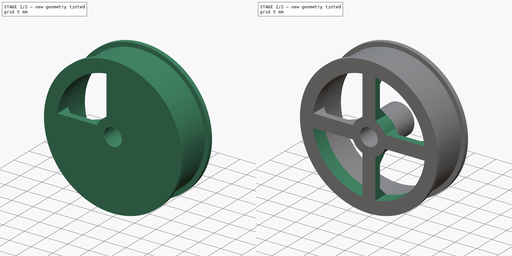
[diagram: build sequence overview — one tinted view per stage of 2, left to right]
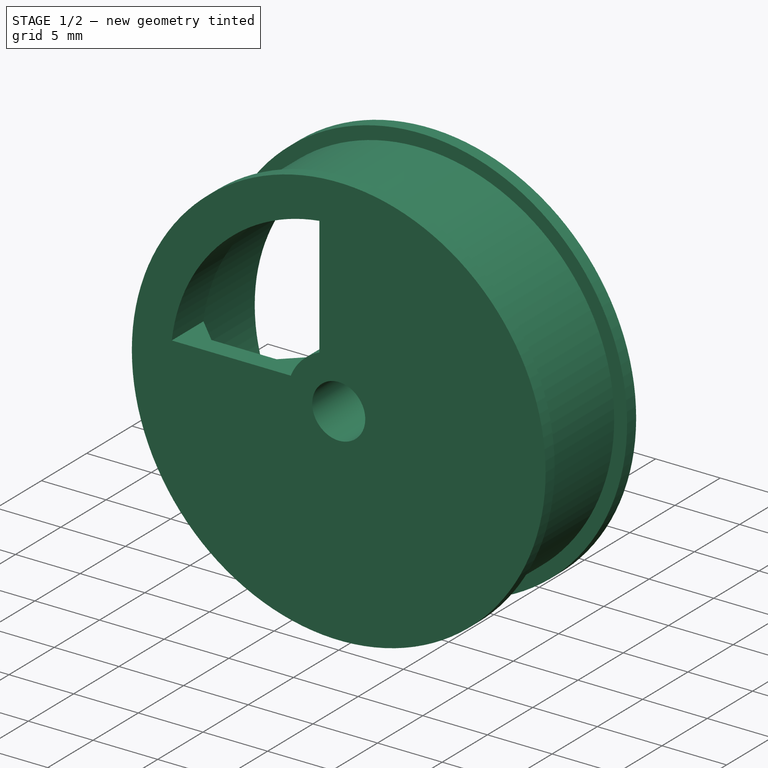
[diagram: stage 1 of 2 — iso view after this stage's code; geometry added in this stage tinted green]
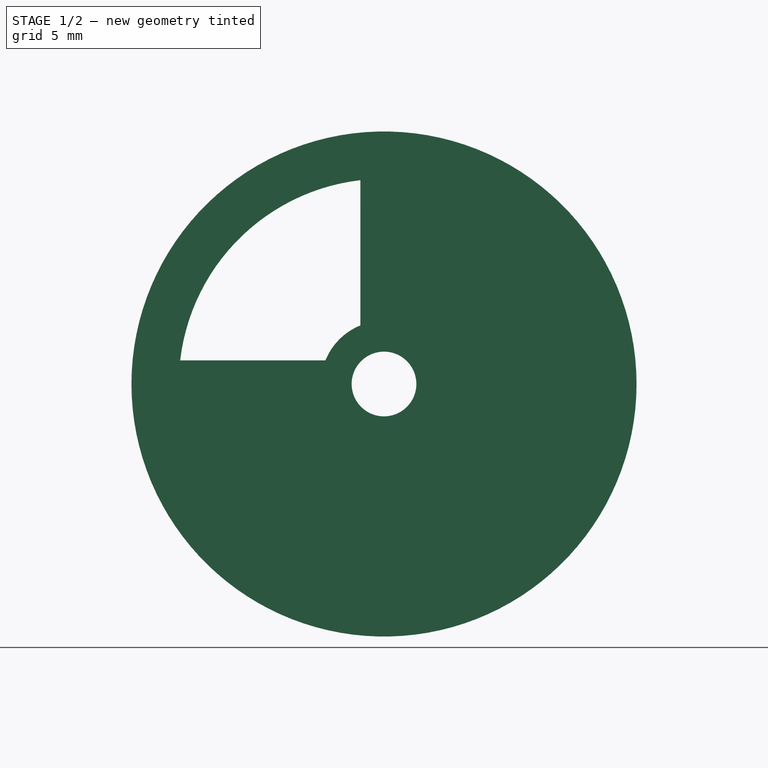
[diagram: stage 1 of 2 — front view after this stage's code; geometry added in this stage tinted green]
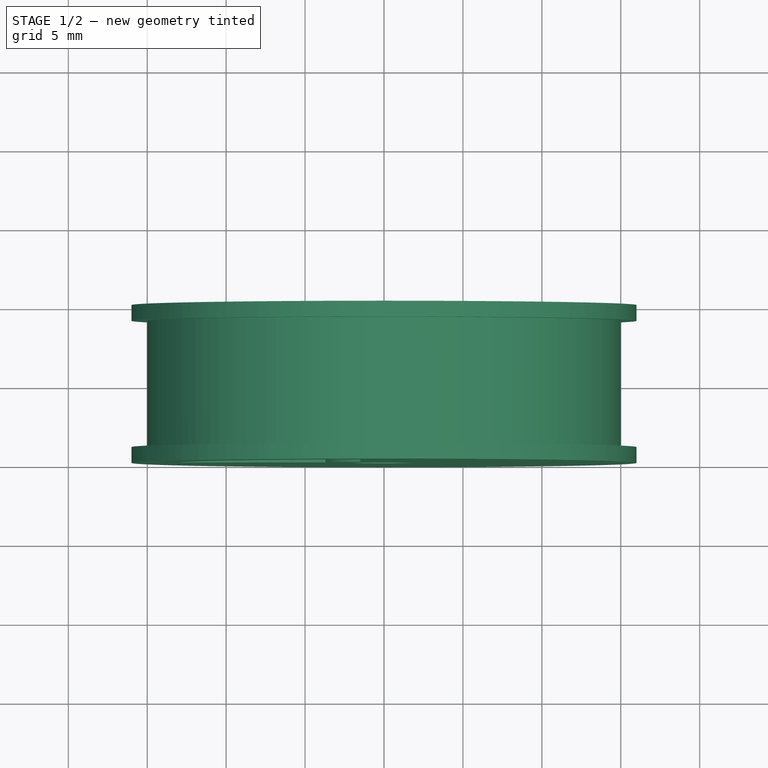
[diagram: stage 1 of 2 — top view after this stage's code; geometry added in this stage tinted green]
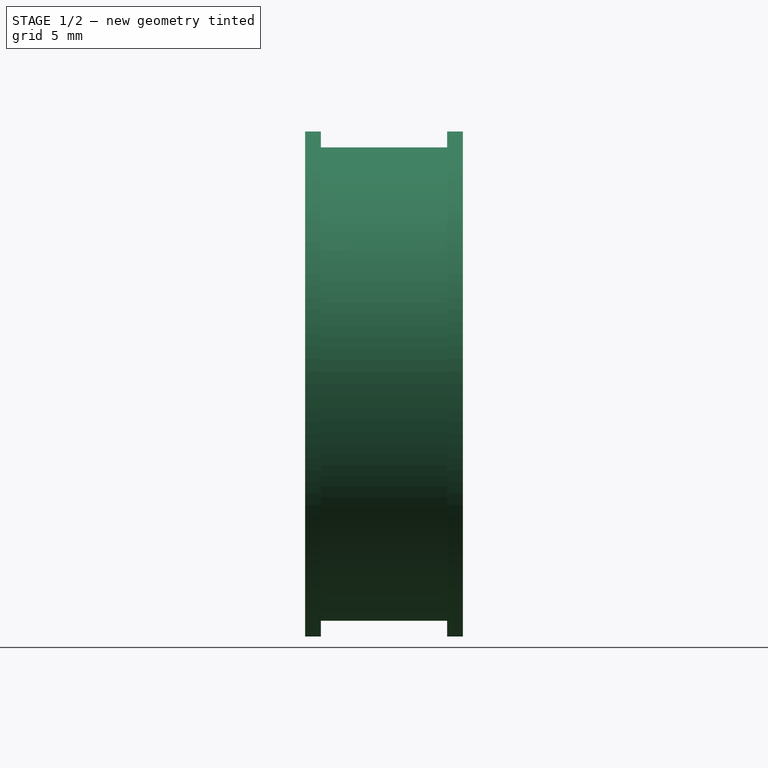
[diagram: stage 1 of 2 — right view after this stage's code; geometry added in this stage tinted green]
FCSTD DOCUMENT  (FreeCAD 0.16RUnknown)
Label: D32wheel
License: All rights reserved
LicenseURL: http://en.wikipedia.org/wiki/All_rights_reserved
objects: Sketcher::SketchObject×2, PartDesign::Revolution×1, PartDesign::Pocket×1, PartDesign::PolarPattern×1
note: 7 computed .brp shape members not serialized (recipe doc carries the construction recipe); baked Part::Feature solids carry a one-line shape summary decoded from their .brp

FEATURE [Sketcher::SketchObject] Sketch
  sketch-geometry (14):
    g0: LineSegment StartX=-2.05 StartY=5 StartZ=0 EndX=-2.05 EndY=-5 EndZ=0
    g1: LineSegment StartX=-2.05 StartY=-5 StartZ=0 EndX=-16 EndY=-5 EndZ=0
    g2: LineSegment StartX=-16 StartY=-5 StartZ=0 EndX=-16 EndY=-4 EndZ=0
    g3: LineSegment StartX=-16 StartY=4 StartZ=0 EndX=-16 EndY=5 EndZ=0
    g4: LineSegment StartX=-16 StartY=5 StartZ=0 EndX=-13.5 EndY=5 EndZ=0
    g5: LineSegment StartX=-16 StartY=4 StartZ=0 EndX=-15 EndY=4 EndZ=0
    g6: LineSegment StartX=-15 StartY=4 StartZ=0 EndX=-15 EndY=-4 EndZ=0
    g7: LineSegment StartX=-15 StartY=-4 StartZ=0 EndX=-16 EndY=-4 EndZ=0
    g8: LineSegment StartX=-13.5 StartY=5 StartZ=0 EndX=-13.5 EndY=-1 EndZ=0
    g9: LineSegment StartX=-11 StartY=-3.5 StartZ=0 EndX=-6.05 EndY=-3.5 EndZ=0
    g10: LineSegment StartX=-3.55 StartY=-1 StartZ=0 EndX=-3.55 EndY=5 EndZ=0
    g11: LineSegment StartX=-13.5 StartY=-1 StartZ=0 EndX=-11 EndY=-3.5 EndZ=0
    g12: LineSegment StartX=-6.05 StartY=-3.5 StartZ=0 EndX=-3.55 EndY=-1 EndZ=0
    g13: LineSegment StartX=-3.55 StartY=5 StartZ=0 EndX=-2.05 EndY=5 EndZ=0
  constraints (40):
    c: Vertical(g0)
    c: Coincident(g0,g1)
    c: Horizontal(g1)
    c: Coincident(g1,g2)
    c: Coincident(g3,g4)
    c: Coincident(g13,g0)
    c: Horizontal(g4)
    c: Vertical(g2)
    c: Symmetric(g0,g0,g-1)
    c: Vertical(g3)
    c: Symmetric(g2,g3,g-1)
    c: DistanceX(g0) = -2.05
    c: DistanceY(g0,g0) = 10
    c: DistanceX(g3,g0) = 13.95
    c: DistanceY(g3,g3) = 1
    c: Coincident(g3,g5)
    c: Horizontal(g5)
    c: Coincident(g5,g6)
    c: Vertical(g6)
    c: Coincident(g6,g7)
    c: Coincident(g7,g2)
    c: Horizontal(g7)
    c: DistanceX(g5,g5) = 1
    c: Vertical(g8)
    c: Horizontal(g9)
    c: Vertical(g10)
    c: Coincident(g9,g12)
    c: Coincident(g9,g11)
    c: Coincident(g8,g11)
    c: Coincident(g10,g12)
    c: Coincident(g4,g8)
    c: Coincident(g13,g10)
    c: Tangent(g4,g13)
    c: Equal(g12,g11)
    c: Equal(g8,g10)
    c: DistanceY(g10,g10) = 6
    c: Angle(g12) = 0.785398
    c: DistanceX(g13,g13) = 1.5
    c: DistanceX(g4,g4) = 2.5
    c: DistanceY(g0,g9) = 1.5
FEATURE [PartDesign::Revolution] Revolution
  Angle = 360
  Axis = (0,1,0)
  Base = (0,0,0)
  ReferenceAxis = -> Sketch [V_Axis]
  Sketch = -> Sketch
FEATURE [Sketcher::SketchObject] Sketch001
  Placement = pos=(0,-5,0) rot=(1,0,0;1.5708rad)
  Support = -> Revolution [Face10]
  sketch-geometry (4):
    g0: ArcOfCircle CenterX=0 CenterY=0 CenterZ=0 NormalX=0 NormalY=0 NormalZ=1 Radius=4 StartAngle=1.95519 EndAngle=2.7572
    g1: ArcOfCircle CenterX=0 CenterY=0 CenterZ=0 NormalX=0 NormalY=0 NormalZ=1 Radius=13 StartAngle=1.68644 EndAngle=3.02595
    g2: LineSegment StartX=-1.5 StartY=12.9132 StartZ=0 EndX=-1.5 EndY=3.7081 EndZ=0
    g3: LineSegment StartX=-12.9132 StartY=1.5 StartZ=0 EndX=-3.7081 EndY=1.5 EndZ=0
  constraints (12):
    c: Coincident(g0,g-1)
    c: Coincident(g1,g-1)
    c: Radius(g0) = 4
    c: Radius(g1) = 13
    c: Vertical(g2)
    c: Coincident(g1,g2)
    c: Coincident(g2,g0)
    c: DistanceX(g1) = -1.5
    c: Horizontal(g3)
    c: Coincident(g1,g3)
    c: Coincident(g3,g0)
    c: DistanceY(g-1,g1) = 1.5
FEATURE [PartDesign::Pocket] Pocket
  Length = 5
  Sketch = -> Sketch001
  Type = 0
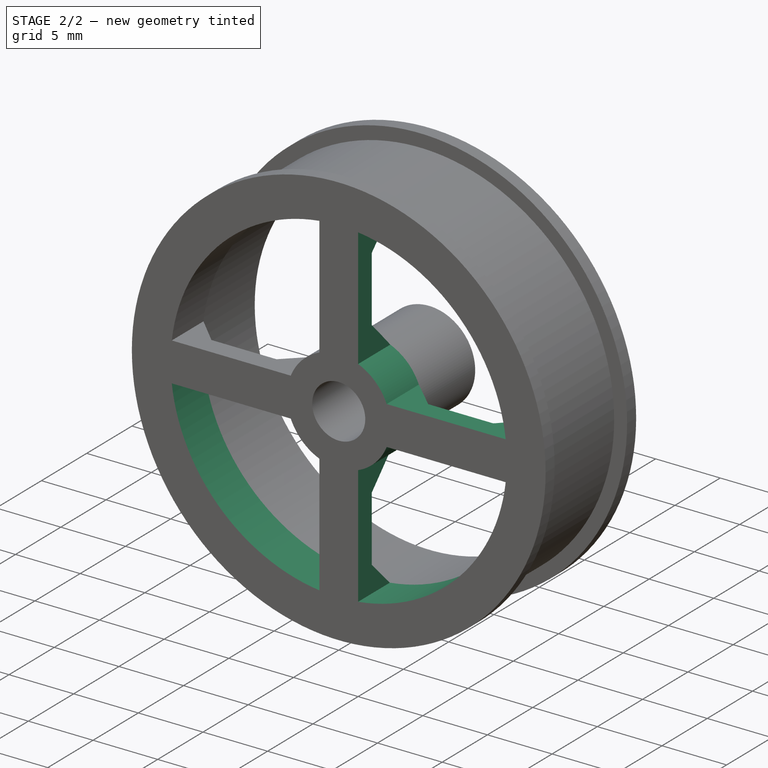
[diagram: stage 2 of 2 — iso view after this stage's code; geometry added in this stage tinted green]
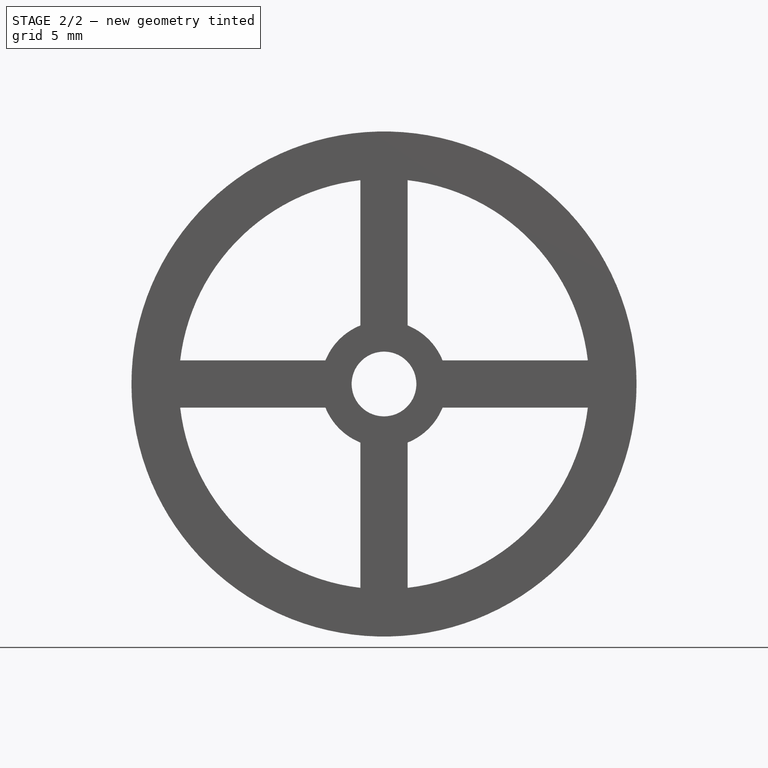
[diagram: stage 2 of 2 — front view after this stage's code; geometry added in this stage tinted green]
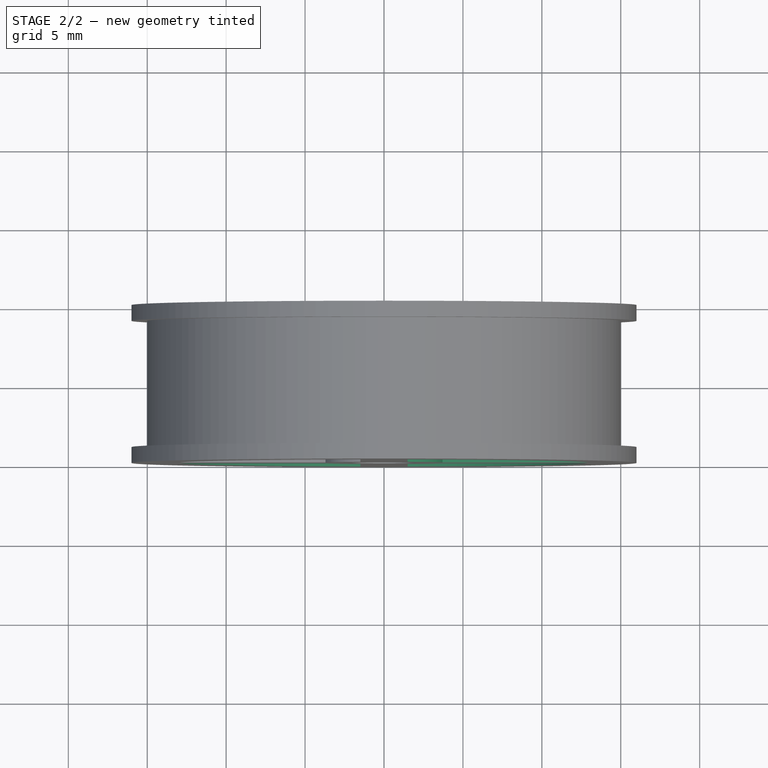
[diagram: stage 2 of 2 — top view after this stage's code; geometry added in this stage tinted green]
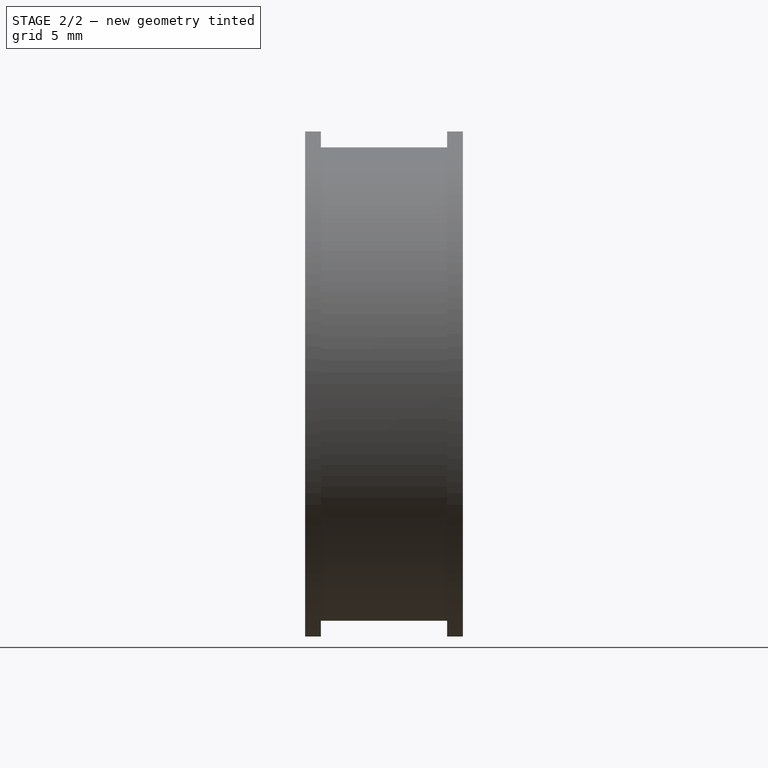
[diagram: stage 2 of 2 — right view after this stage's code; geometry added in this stage tinted green]
FEATURE [PartDesign::PolarPattern] PolarPattern
  Angle = 360
  Axis = -> Sketch001 [N_Axis]
  Occurrences = 4
  Originals = -> [Pocket]
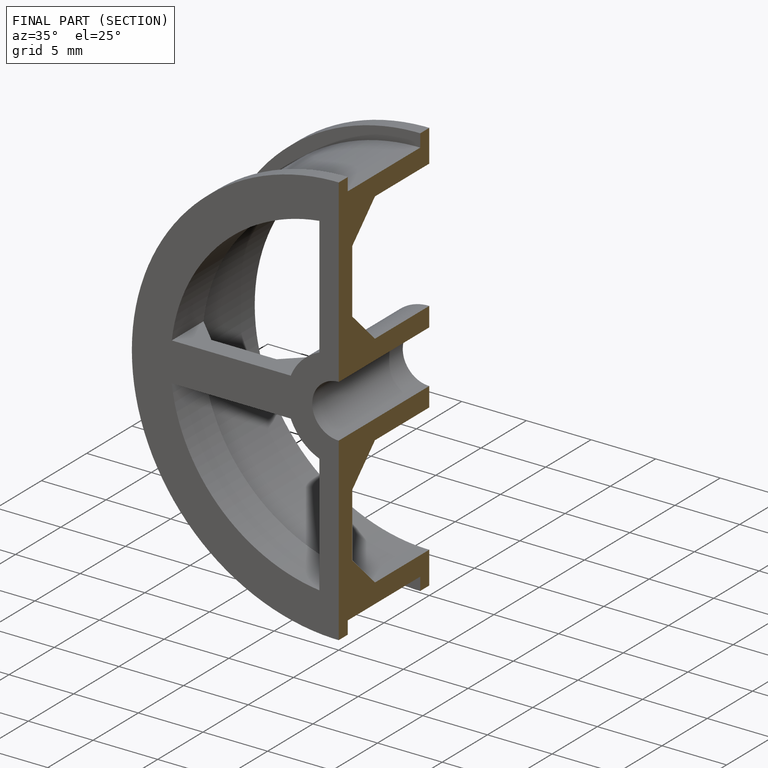
[diagram: finished part — half-section view (interior)]
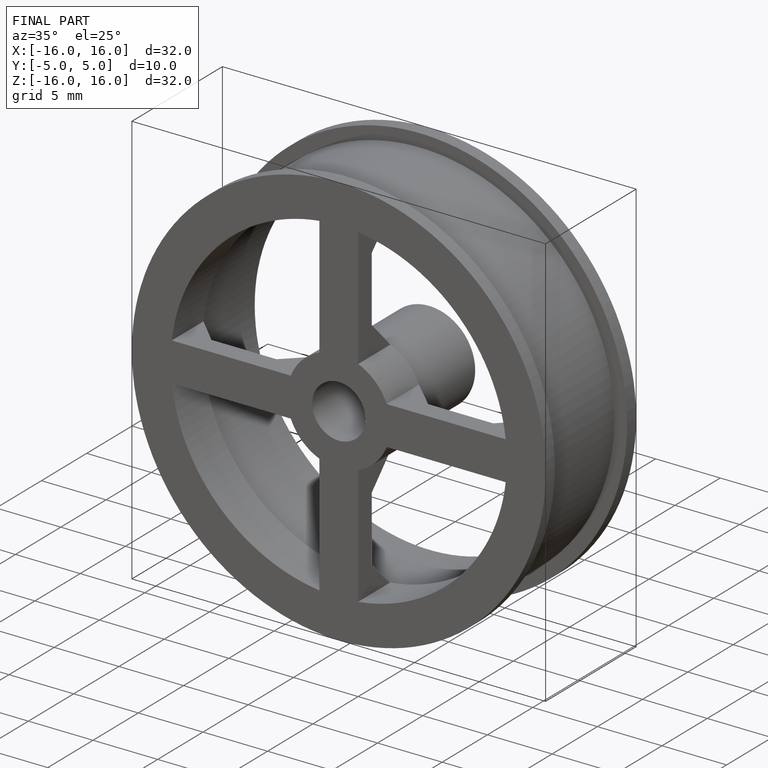
[diagram: finished part — iso view with bounding-box wireframe]
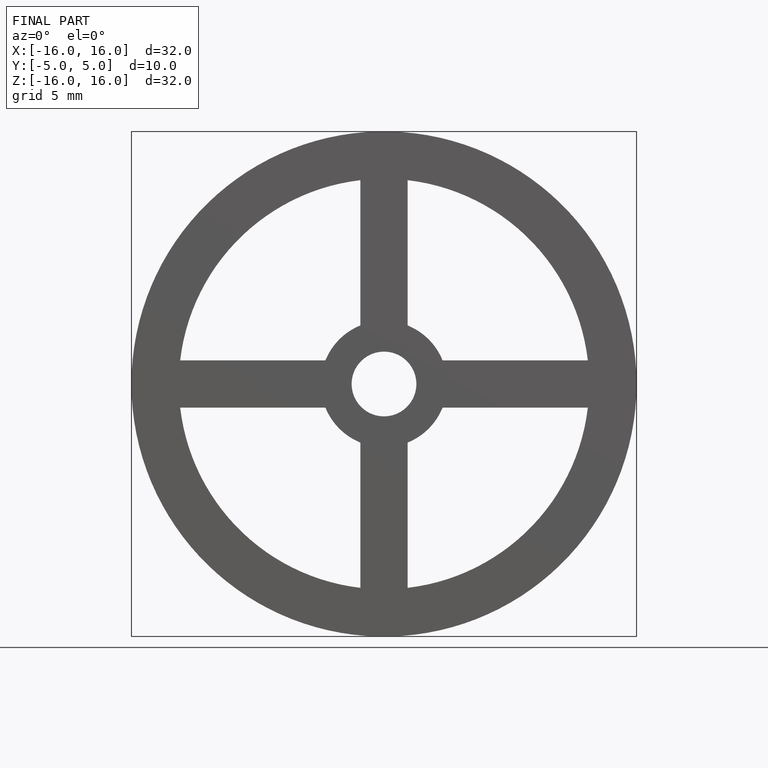
[diagram: finished part — front view with bounding-box wireframe]
